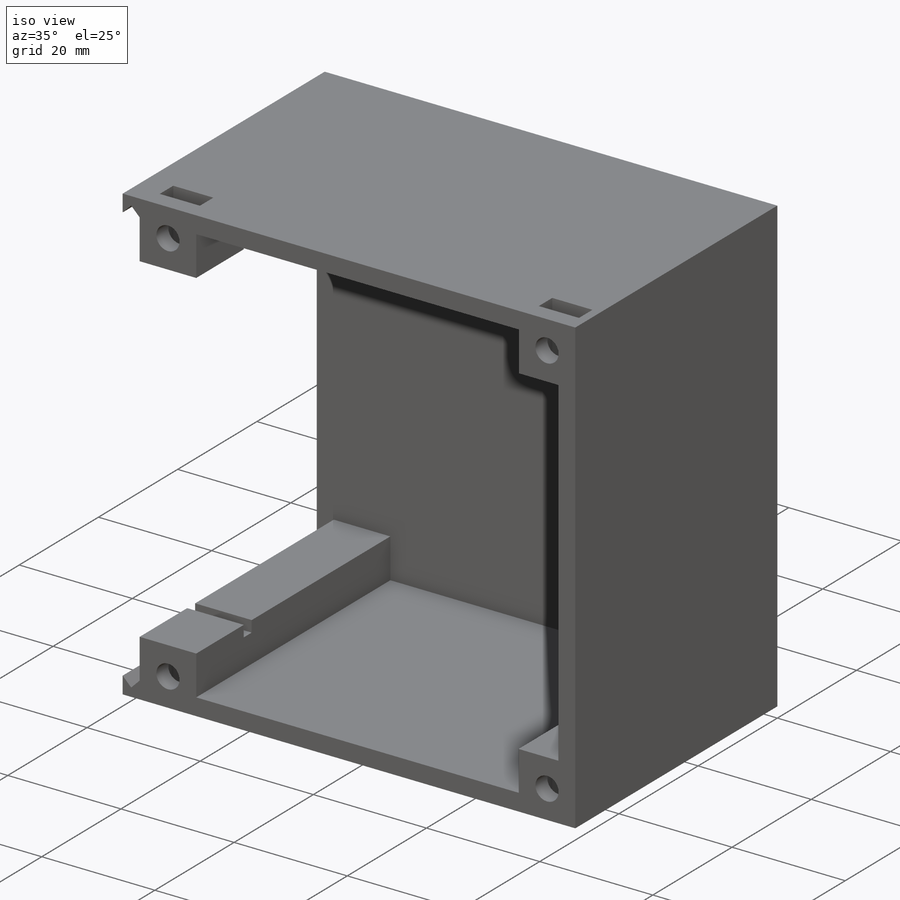
[diagram: iso view]
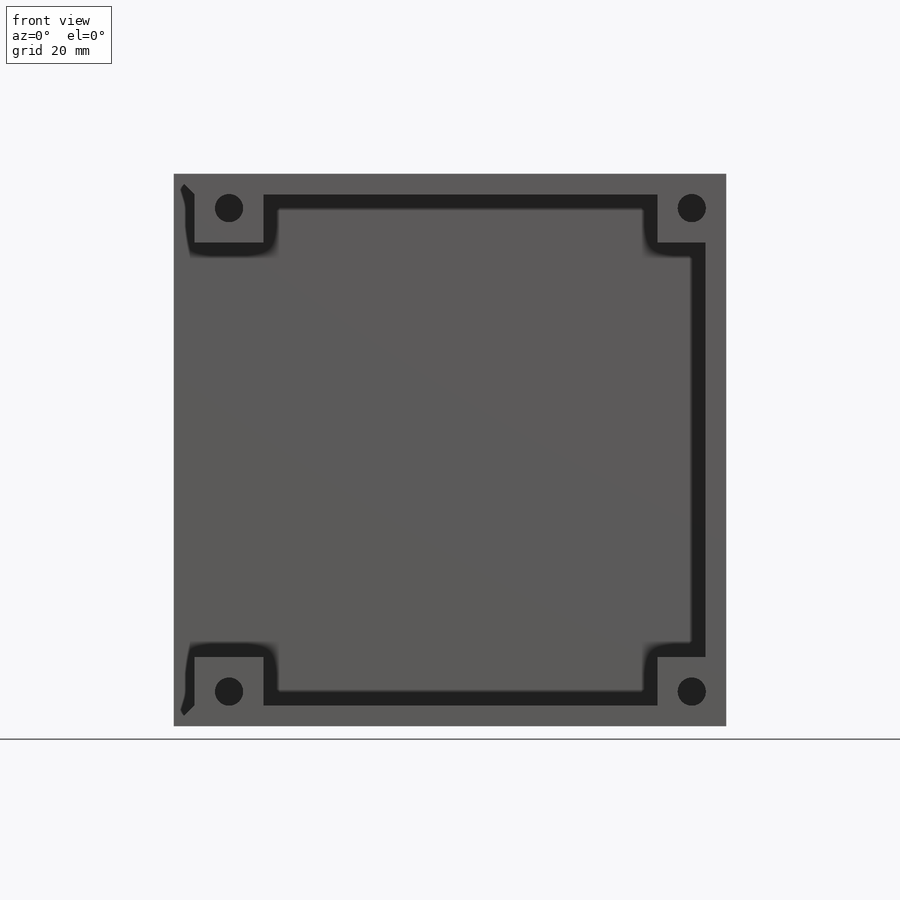
[diagram: front view]
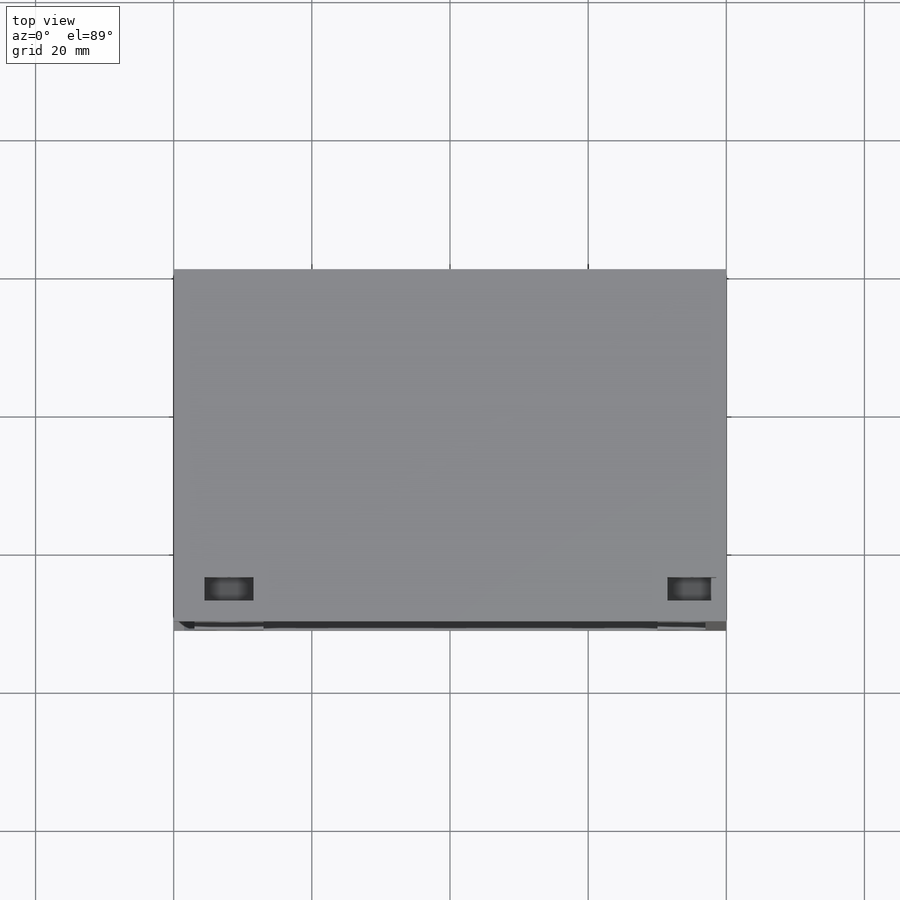
[diagram: top view]
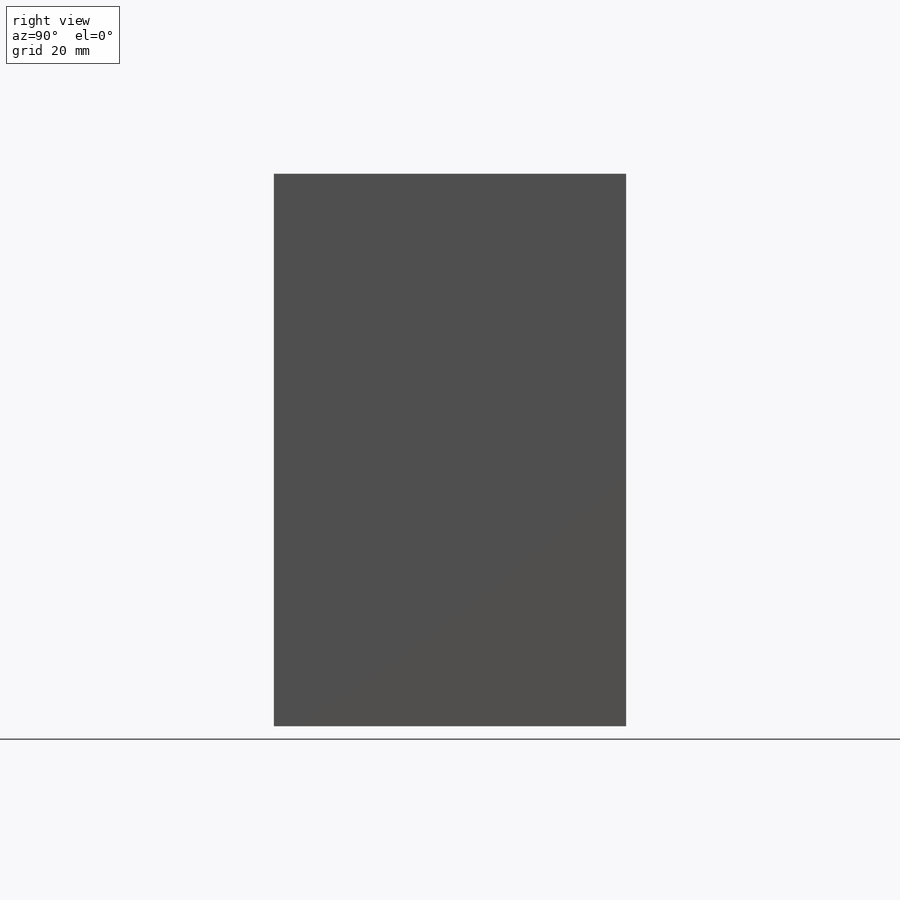
[diagram: right view]
SOLIDWORKS PART (.sldprt)
format: sldprt  version: not decoded by parser v0  size: 348,160 bytes
history: native  units: mm
features: sketch x6, cut_extrude x4, plane x3, extrude x2, material x1 (+10 scaffold rows collapsed)
feature tree (26):
  scaffold x10  (default folders/planes/origin — collapsed)
  material  "Matériau <non spécifié>"
  plane  "Plan de face"
  plane  "Plan de dessus"
  plane  "Plan de droite"
  sketch  "Esquisse3"  dims[D1=80.0mm D2=80.0mm]
  extrude  "Boss.-Extru.1"  Depth=2mm
  sketch  "Esquisse6"  dims[c1.D1=3.0mm c1.D2=3.0mm c1.D3=3.0mm c1.D4=~1.660556mm c2.D4=45.0deg c2.D5=~1.510468mm c3.D5=90.0deg c3.D6=3.0mm c3.D7=3.0mm c3.D8=3.0mm c3.D9=3.0mm c3.D10=~2.129922mm c4.D10=45.0deg c4.D11=~1.506083mm c5.D11=90.0deg c5.D12=3.0mm c5.D13=3.0mm c5.D14=10.0mm c5.D15=10.0mm c5.D16=10.0mm c5.D17=10.0mm c5.D18=10.0mm c5.D19=10.0mm c5.D20=10.0mm c5.D21=10.0mm]
  extrude  "Boss.-Extru.2"  Depth=49mm
  sketch  "Esquisse7"  dims[c1.D1=4.1mm c1.D2=4.1mm c1.D3=4.1mm c1.D4=4.1mm c1.D5=5.0mm c1.D6=~5.657212mm c2.D6=90.0deg c3.D6=5.0mm c3.D7=5.0mm c3.D8=5.0mm c3.D9=5.0mm c3.D10=5.0mm c3.D11=5.0mm c3.D12=5.0mm]
  cut_extrude  "Enlèv. mat.-Extru.1"  Depth=30mm
  sketch  "Esquisse8"  dims[D1=7.1mm D2=3.4mm D3=4.45mm D4=3.0mm D5=3.4mm D6=3.0mm D7=1.45mm D8=7.1mm]
  cut_extrude  "Enlèv. mat.-Extru.2"  Depth=9mm
  sketch  "Esquisse9"  dims[D1=7.1mm D2=7.1mm D3=3.4mm D4=3.4mm D5=3.0mm D6=3.0mm D7=1.45mm D8=4.45mm]
  cut_extrude  "Enlèv. mat.-Extru.3"  Depth=9mm
  sketch  "Esquisse10"  dims[D1=2.0mm D2=2.0mm D3=2.0mm D4=2.0mm D5=14.0mm D6=14.0mm]
  cut_extrude  "Enlèv. mat.-Extru.4"  Depth=74mm
decode coverage: 12 of 12 modeling features carry decoded parameters
note: ~ marks probable driven/reference dimensions
note: suppression state not decoded; provenance and decode notes live in map.json
